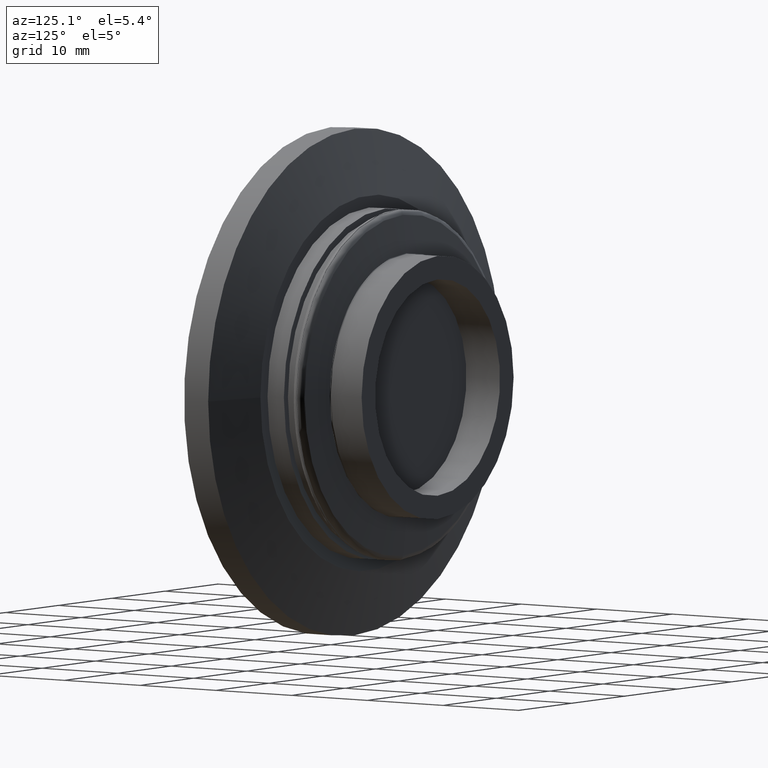
[diagram: clean part render]
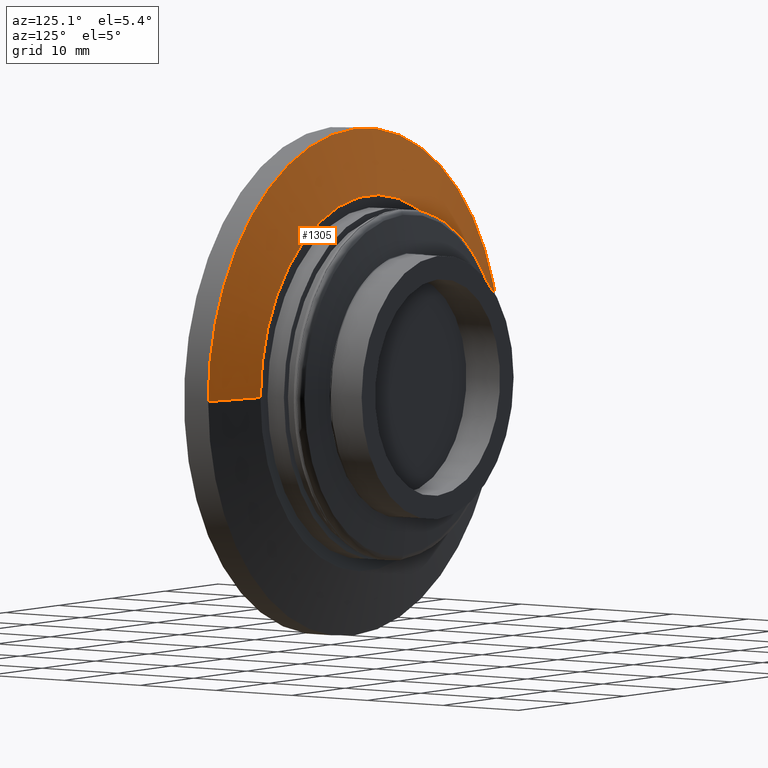
[diagram: same view with one face highlighted and labeled with its STEP entity id]
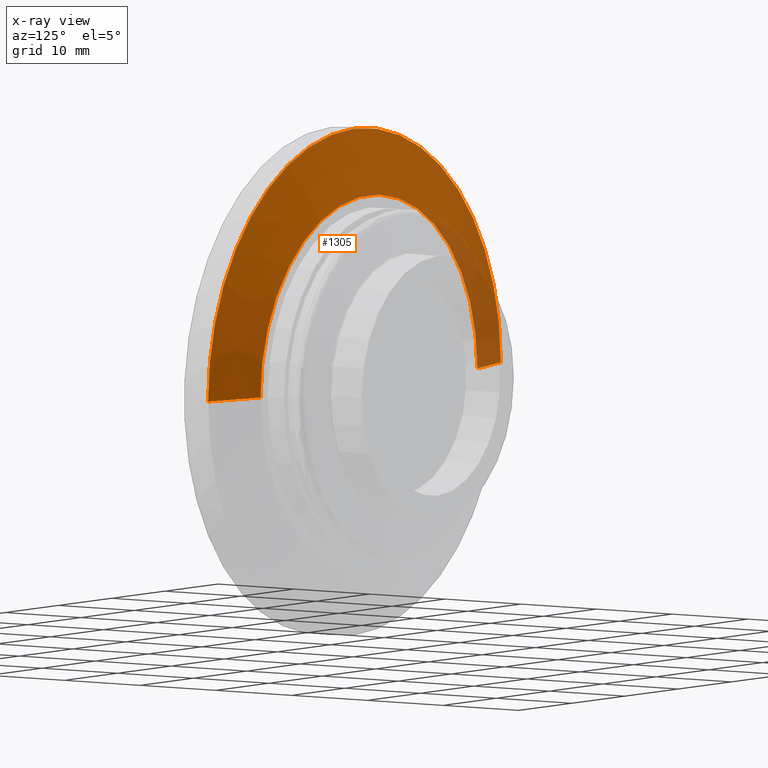
[diagram: x-ray of the same camera — body ghosted, the highlighted face saturated]
A machine part, auxiliary view. The second image highlights one B-rep face of the part: STEP entity #1305.
The next image is the same camera in x-ray: the body ghosted, the highlighted face saturated — about 12% of this face is hidden behind the body in this view.
In plain terms, the highlighted conical surface has half-angle 75 deg.
Its self-contained STEP definition (entity closure, byte-faithful):
#93 = CARTESIAN_POINT ( 'NONE',  ( 0.0000000000000000000, 0.1250000000000000600, 0.0000000000000000000 ) ) ;
#95 = DIRECTION ( 'NONE',  ( -7.886397210347181000E-018, -1.000000000000000000, 0.0000000000000000000 ) ) ;
#98 = DIRECTION ( 'NONE',  ( 1.000000000000000000, -1.577279442069435900E-017, 0.0000000000000000000 ) ) ;
#132 = CARTESIAN_POINT ( 'NONE',  ( 0.8025961894323349100, 0.2000000000000000400, 0.0000000000000000000 ) ) ;
#144 = CARTESIAN_POINT ( 'NONE',  ( -1.082500000000000000, 0.1250000000000000600, 1.325680160077009900E-016 ) ) ;
#147 = CARTESIAN_POINT ( 'NONE',  ( -0.8025961894323349100, 0.2000000000000000400, 1.154288507236590800E-016 ) ) ;
#153 = CARTESIAN_POINT ( 'NONE',  ( 1.325680160077009900E-016, 0.1250000000000000600, 1.082500000000000000 ) ) ;
#156 = CARTESIAN_POINT ( 'NONE',  ( 1.082500000000000000, 0.1250000000000000600, 0.0000000000000000000 ) ) ;
#374 = AXIS2_PLACEMENT_3D ( 'NONE', #1170, #1169, #1165 ) ;
#375 = AXIS2_PLACEMENT_3D ( 'NONE', #1178, #1177, #1176 ) ;
#378 = AXIS2_PLACEMENT_3D ( 'NONE', #1196, #1195, #1194 ) ;
#408 = EDGE_CURVE ( 'NONE', #1035, #1038, #811, .T. ) ;
#413 = EDGE_CURVE ( 'NONE', #1058, #1042, #802, .T. ) ;
#414 = EDGE_CURVE ( 'NONE', #1042, #1045, #804, .T. ) ;
#415 = EDGE_CURVE ( 'NONE', #1038, #1045, #799, .T. ) ;
#416 = EDGE_CURVE ( 'NONE', #1058, #1035, #797, .T. ) ;
#481 = AXIS2_PLACEMENT_3D ( 'NONE', #93, #95, #98 ) ;
#699 = CONICAL_SURFACE ( 'NONE', #481, 1.082500000000000000, 1.308996938995746500 ) ;
#711 = FACE_OUTER_BOUND ( 'NONE', #1022, .T. ) ;
#794 = VECTOR ( 'NONE', #1180, 39.37007874015747400 ) ;
#797 = LINE ( 'NONE', #1193, #794 ) ;
#798 = VECTOR ( 'NONE', #1188, 39.37007874015747400 ) ;
#799 = CIRCLE ( 'NONE', #374, 1.082500000000000000 ) ;
#802 = CIRCLE ( 'NONE', #375, 0.8025961894323349100 ) ;
#804 = LINE ( 'NONE', #1179, #798 ) ;
#811 = CIRCLE ( 'NONE', #378, 1.082500000000000000 ) ;
#849 = ORIENTED_EDGE ( 'NONE', *, *, #413, .T. ) ;
#850 = ORIENTED_EDGE ( 'NONE', *, *, #414, .T. ) ;
#851 = ORIENTED_EDGE ( 'NONE', *, *, #415, .F. ) ;
#852 = ORIENTED_EDGE ( 'NONE', *, *, #408, .F. ) ;
#853 = ORIENTED_EDGE ( 'NONE', *, *, #416, .F. ) ;
#1022 = EDGE_LOOP ( 'NONE', ( #849, #850, #851, #852, #853 ) ) ;
#1035 = VERTEX_POINT ( 'NONE', #156 ) ;
#1038 = VERTEX_POINT ( 'NONE', #153 ) ;
#1042 = VERTEX_POINT ( 'NONE', #147 ) ;
#1045 = VERTEX_POINT ( 'NONE', #144 ) ;
#1058 = VERTEX_POINT ( 'NONE', #132 ) ;
#1165 = DIRECTION ( 'NONE',  ( 0.0000000000000000000, 0.0000000000000000000, -1.000000000000000000 ) ) ;
#1169 = DIRECTION ( 'NONE',  ( -0.0000000000000000000, -1.000000000000000000, -0.0000000000000000000 ) ) ;
#1170 = CARTESIAN_POINT ( 'NONE',  ( 0.0000000000000000000, 0.1250000000000000600, 0.0000000000000000000 ) ) ;
#1176 = DIRECTION ( 'NONE',  ( 1.000000000000000000, 0.0000000000000000000, 0.0000000000000000000 ) ) ;
#1177 = DIRECTION ( 'NONE',  ( -7.886397210347181000E-018, -1.000000000000000000, 0.0000000000000000000 ) ) ;
#1178 = CARTESIAN_POINT ( 'NONE',  ( 5.914797907760387300E-019, 0.2000000000000000400, 0.0000000000000000000 ) ) ;
#1179 = CARTESIAN_POINT ( 'NONE',  ( -1.082500000000000000, 0.1250000000000000600, 1.325680160077009900E-016 ) ) ;
#1180 = DIRECTION ( 'NONE',  ( 0.9659258262890682000, -0.2588190451025214600, 0.0000000000000000000 ) ) ;
#1188 = DIRECTION ( 'NONE',  ( -0.9659258262890682000, -0.2588190451025214600, 1.182917971378669600E-016 ) ) ;
#1193 = CARTESIAN_POINT ( 'NONE',  ( 1.082500000000000000, 0.1250000000000000300, 0.0000000000000000000 ) ) ;
#1194 = DIRECTION ( 'NONE',  ( 0.0000000000000000000, 0.0000000000000000000, -1.000000000000000000 ) ) ;
#1195 = DIRECTION ( 'NONE',  ( -0.0000000000000000000, -1.000000000000000000, -0.0000000000000000000 ) ) ;
#1196 = CARTESIAN_POINT ( 'NONE',  ( 0.0000000000000000000, 0.1250000000000000600, 0.0000000000000000000 ) ) ;
#1305 = ADVANCED_FACE ( 'NONE', ( #711 ), #699, .T. ) ;